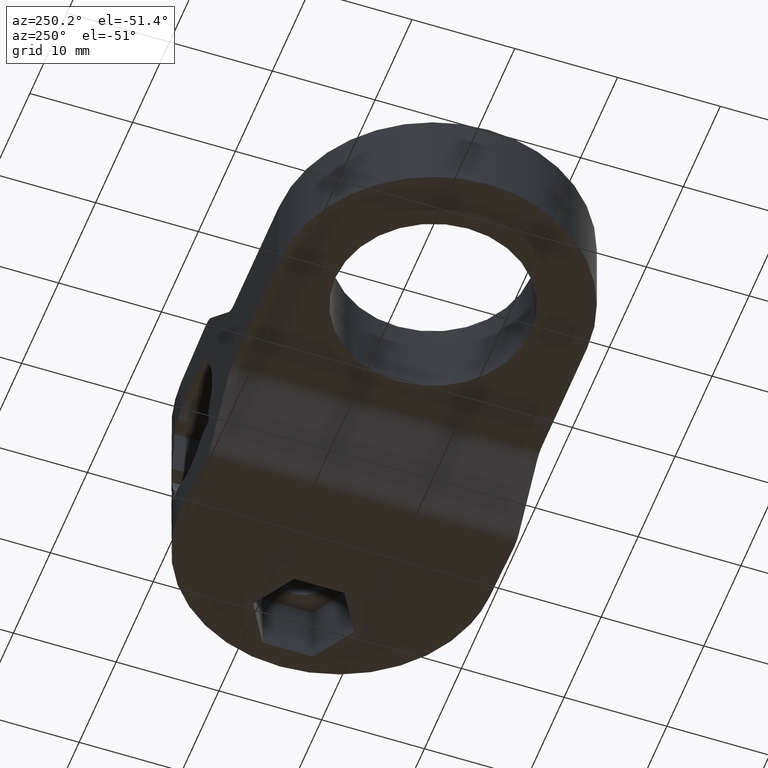
[diagram: clean part render]
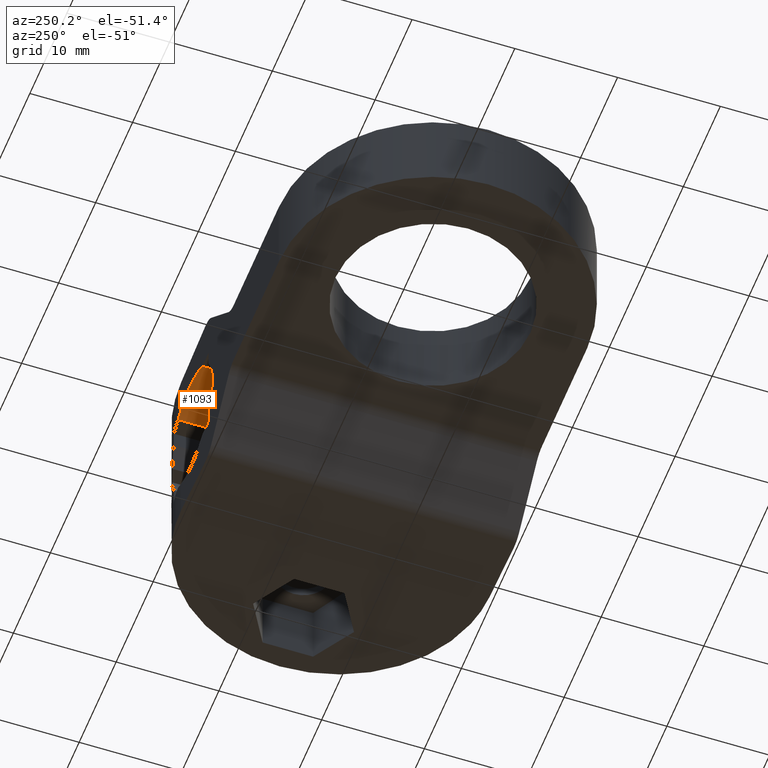
[diagram: same view with one face highlighted and labeled with its STEP entity id]
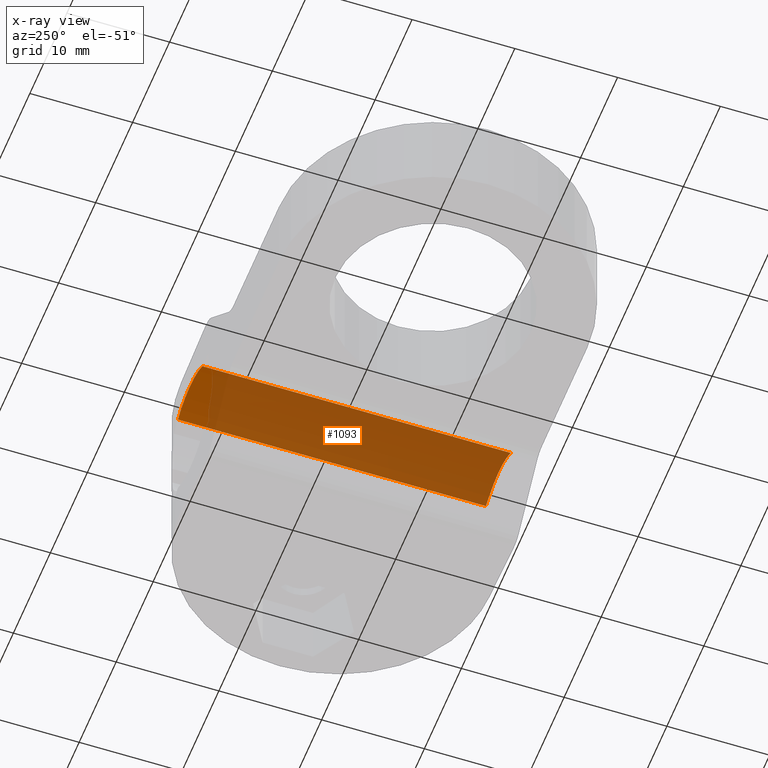
[diagram: x-ray of the same camera — body ghosted, the highlighted face saturated]
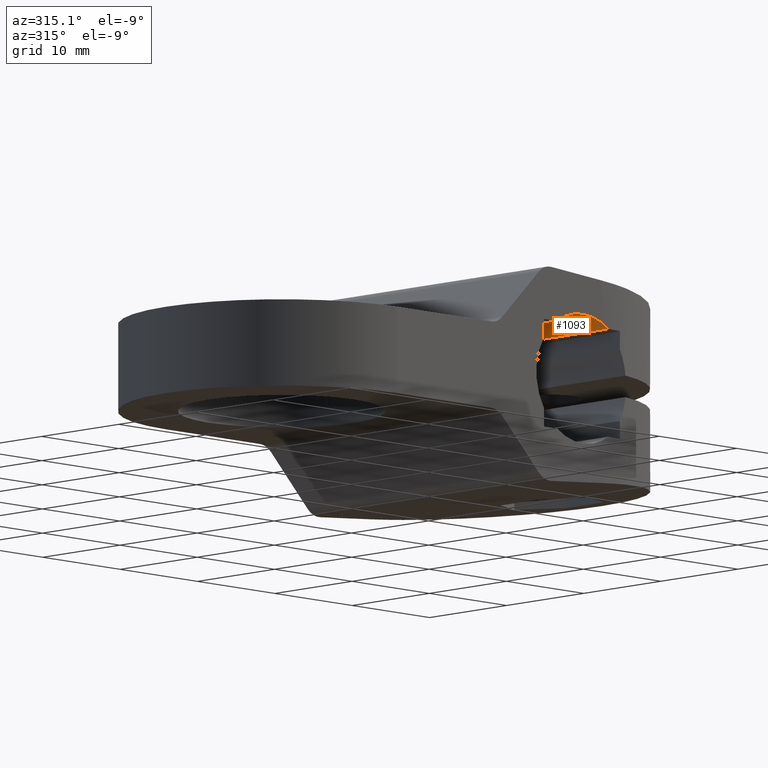
[diagram: same view with one face highlighted and labeled with its STEP entity id]
A machine part, auxiliary view. The second image highlights one B-rep face of the part: STEP entity #1093.
The next image is the same camera in x-ray: the body ghosted, the highlighted face saturated — about 93% of this face is hidden behind the body in this view.
A second angle (auxiliary view) of the same face is appended — the face is thin or edge-on in the first view.
In plain terms, the highlighted cylindrical surface (partial cylindrical patch) has radius 6 mm, axis along (0, 1, 0).
Its self-contained STEP definition (entity closure, byte-faithful):
#229=CARTESIAN_POINT('',(-3.316624790355434,0.0,4.999999999999993));
#230=VERTEX_POINT('',#229);
#237=CARTESIAN_POINT('',(-3.316624790355434,-30.0,4.999999999999993));
#238=VERTEX_POINT('',#237);
#239=CARTESIAN_POINT('',(-3.316624790355434,0.0,4.999999999999993));
#240=DIRECTION('',(0.0,-1.0,0.0));
#241=VECTOR('',#240,30.0);
#242=LINE('',#239,#241);
#243=EDGE_CURVE('',#230,#238,#242,.T.);
#659=CARTESIAN_POINT('',(2.500000000000057,-29.999999999999993,5.454356057317867));
#660=VERTEX_POINT('',#659);
#667=CARTESIAN_POINT('',(3.316624790355434,-29.977754302690933,4.999999999999993));
#668=VERTEX_POINT('',#667);
#669=CARTESIAN_POINT('',(3.316624790355434,-29.977754302690933,4.999999999999993));
#670=CARTESIAN_POINT('',(3.184023857030581,-29.984984038683990,5.087957508537869));
#671=CARTESIAN_POINT('',(2.917331047808830,-29.996060982686416,5.249976403443846));
#672=CARTESIAN_POINT('',(2.638689968098277,-29.999999999999993,5.390787614663566));
#673=CARTESIAN_POINT('',(2.500000000000000,-29.999999999999993,5.454356057317860));
#674=B_SPLINE_CURVE_WITH_KNOTS('',3,(#669,#670,#671,#672,#673),.UNSPECIFIED.,.F.,.U.,(4,1,4),(0.0,0.477982732125250,0.935789746791569),.UNSPECIFIED.);
#675=EDGE_CURVE('',#668,#660,#674,.T.);
#937=CARTESIAN_POINT('',(3.316624790355490,-0.022245697309060,4.999999999999986));
#938=VERTEX_POINT('',#937);
#948=CARTESIAN_POINT('',(2.500000000000000,0.0,5.454356057317860));
#949=VERTEX_POINT('',#948);
#950=CARTESIAN_POINT('',(2.500000000000000,0.0,5.454356057317860));
#951=CARTESIAN_POINT('',(2.638689968098277,0.0,5.390787614663566));
#952=CARTESIAN_POINT('',(2.917331047808830,-0.003939017313556,5.249976403443846));
#953=CARTESIAN_POINT('',(3.184023857030581,-0.015015961316010,5.087957508537869));
#954=CARTESIAN_POINT('',(3.316624790355434,-0.022245697309060,4.999999999999993));
#955=B_SPLINE_CURVE_WITH_KNOTS('',3,(#950,#951,#952,#953,#954),.UNSPECIFIED.,.F.,.U.,(4,1,4),(0.0,0.457807014666320,0.935789746791570),.UNSPECIFIED.);
#956=EDGE_CURVE('',#949,#938,#955,.T.);
#1022=CARTESIAN_POINT('',(0.0,-30.0,0.0));
#1023=DIRECTION('',(0.0,1.0,0.0));
#1024=DIRECTION('',(-1.0,0.0,-8.560756E-017));
#1025=AXIS2_PLACEMENT_3D('',#1022,#1023,#1024);
#1026=CIRCLE('',#1025,6.0);
#1027=EDGE_CURVE('',#238,#660,#1026,.T.);
#1047=CARTESIAN_POINT('',(0.0,0.0,0.0));
#1048=DIRECTION('',(0.0,1.0,0.0));
#1049=DIRECTION('',(-1.0,0.0,-8.560756E-017));
#1050=AXIS2_PLACEMENT_3D('',#1047,#1048,#1049);
#1051=CIRCLE('',#1050,6.0);
#1052=EDGE_CURVE('',#230,#949,#1051,.T.);
#1075=CARTESIAN_POINT('',(0.0,0.0,0.0));
#1076=DIRECTION('',(0.0,1.0,0.0));
#1077=DIRECTION('',(-1.0,0.0,-8.560756E-017));
#1078=AXIS2_PLACEMENT_3D('',#1075,#1076,#1077);
#1079=CYLINDRICAL_SURFACE('',#1078,6.0);
#1080=ORIENTED_EDGE('',*,*,#1052,.T.);
#1081=ORIENTED_EDGE('',*,*,#956,.T.);
#1082=CARTESIAN_POINT('',(3.316624790355434,-0.022245697309060,4.999999999999993));
#1083=DIRECTION('',(0.0,-1.0,0.0));
#1084=VECTOR('',#1083,29.955508605381873);
#1085=LINE('',#1082,#1084);
#1086=EDGE_CURVE('',#938,#668,#1085,.T.);
#1087=ORIENTED_EDGE('',*,*,#1086,.T.);
#1088=ORIENTED_EDGE('',*,*,#675,.T.);
#1089=ORIENTED_EDGE('',*,*,#1027,.F.);
#1090=ORIENTED_EDGE('',*,*,#243,.F.);
#1091=EDGE_LOOP('',(#1080,#1081,#1087,#1088,#1089,#1090));
#1092=FACE_OUTER_BOUND('',#1091,.T.);
#1093=ADVANCED_FACE('',(#1092),#1079,.F.);